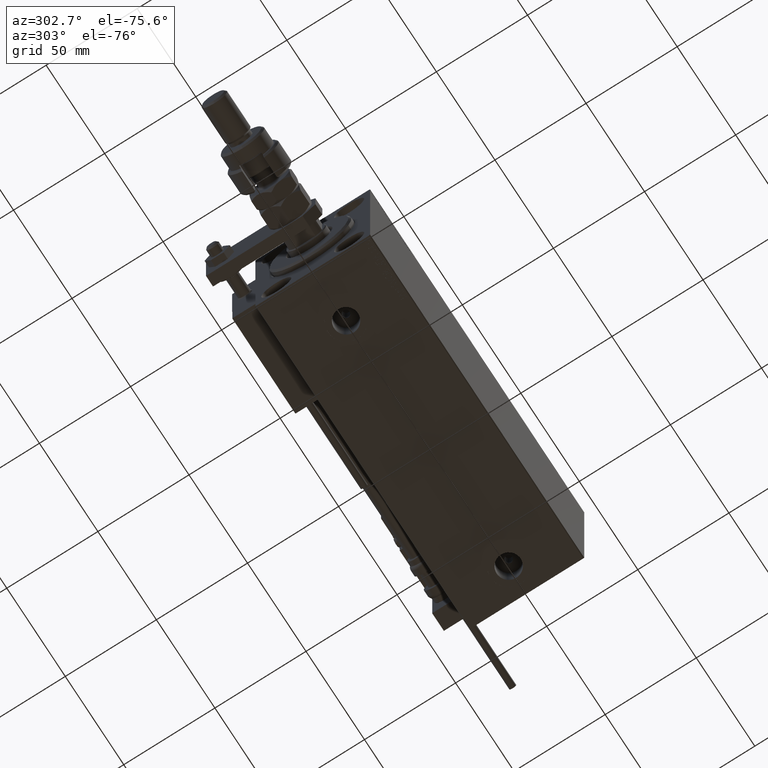
[diagram: clean part render]
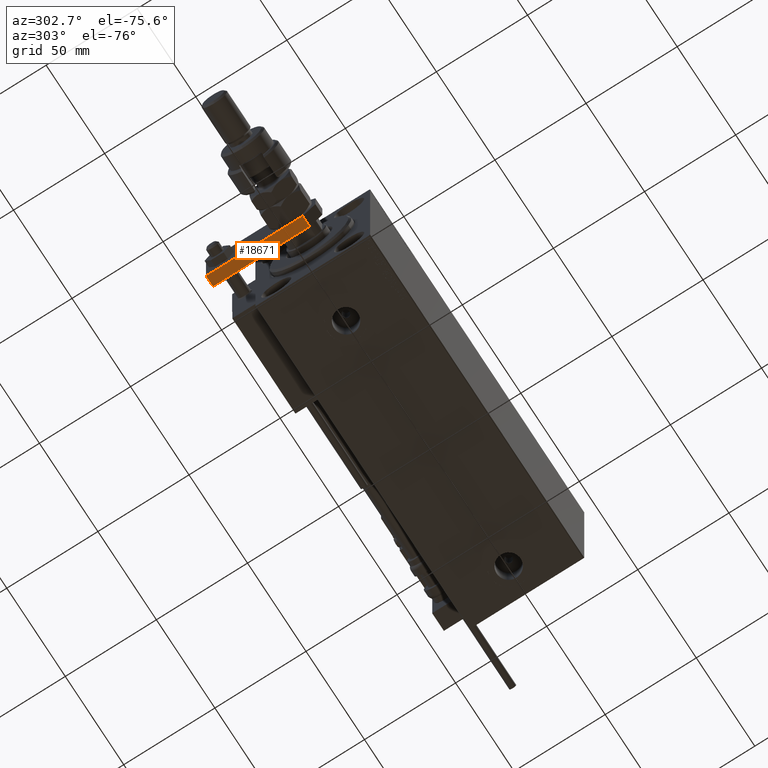
[diagram: same view with one face highlighted and labeled with its STEP entity id]
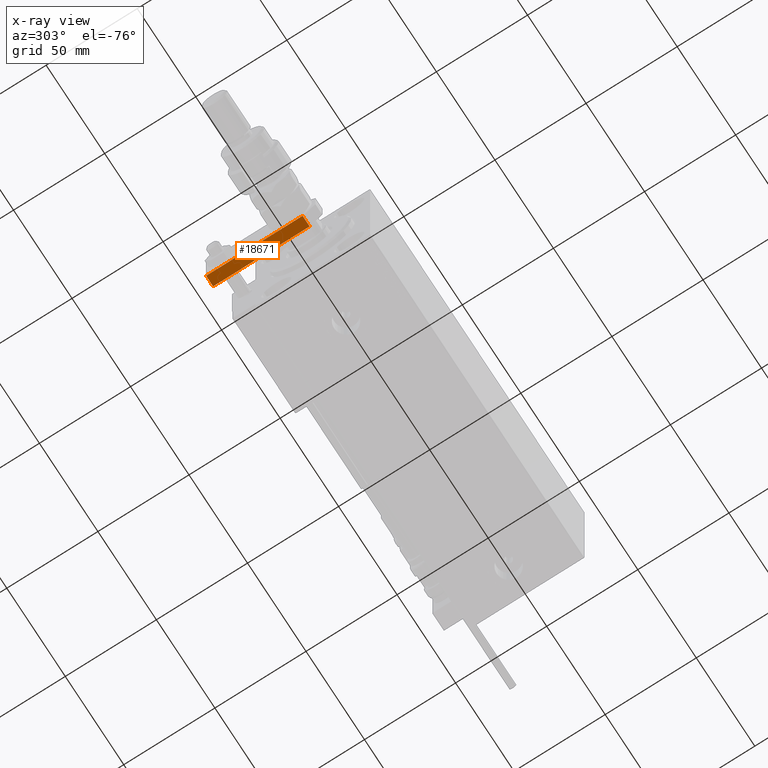
[diagram: x-ray of the same camera — body ghosted, the highlighted face saturated]
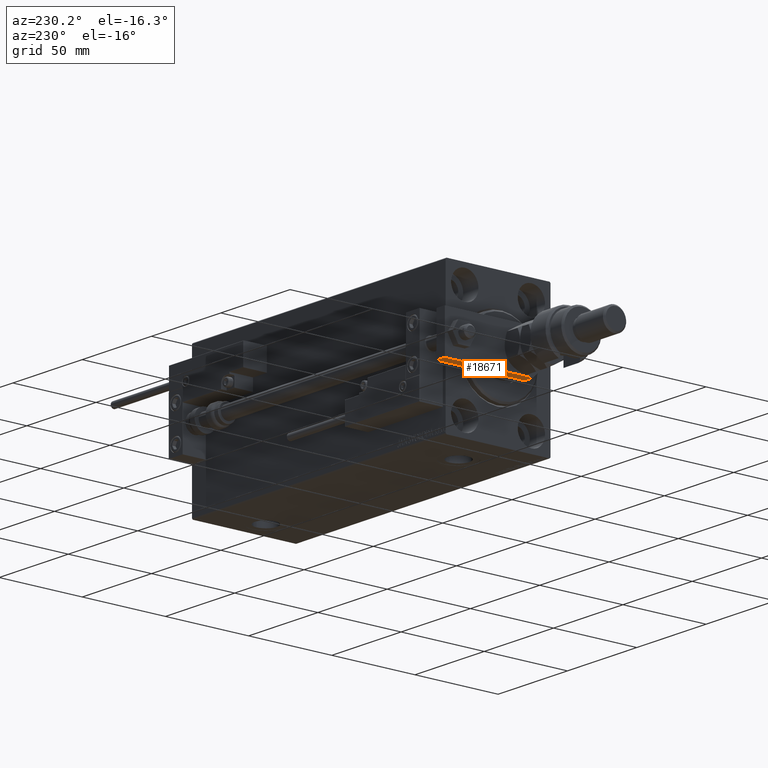
[diagram: same view with one face highlighted and labeled with its STEP entity id]
A machine part, auxiliary view. The second image highlights one B-rep face of the part: STEP entity #18671.
The next image is the same camera in x-ray: the body ghosted, the highlighted face saturated — about 0% of this face is hidden behind the body in this view.
A second angle (auxiliary view) of the same face is appended — the face is thin or edge-on in the first view.
In plain terms, the highlighted planar face has unit normal (0, -0, 1).
Its self-contained STEP definition (entity closure, byte-faithful):
#145 = EDGE_CURVE ( 'NONE', #26861, #39306, #30435, .T. ) ;
#3591 = ORIENTED_EDGE ( 'NONE', *, *, #145, .F. ) ;
#3696 = CARTESIAN_POINT ( 'NONE',  ( -12.49999999999999822, 60.00000000000000000, 6.000000000000000000 ) ) ;
#4661 = DIRECTION ( 'NONE',  ( -8.673617379884035472E-17, -1.000000000000000000, 0.000000000000000000 ) ) ;
#4721 = CARTESIAN_POINT ( 'NONE',  ( -12.50000000000000355, 7.000000000000013323, 6.000000000000000000 ) ) ;
#5438 = DIRECTION ( 'NONE',  ( 8.673617379884034239E-17, 1.000000000000000000, 0.000000000000000000 ) ) ;
#6530 = FACE_OUTER_BOUND ( 'NONE', #36120, .T. ) ;
#7567 = CARTESIAN_POINT ( 'NONE',  ( -12.49999999999999822, 60.00000000000000000, 6.000000000000000000 ) ) ;
#8026 = VECTOR ( 'NONE', #26311, 1000.000000000000000 ) ;
#9568 = CARTESIAN_POINT ( 'NONE',  ( -12.49999999999999822, 60.00000000000000000, 6.000000000000000000 ) ) ;
#10255 = VECTOR ( 'NONE', #40395, 1000.000000000000000 ) ;
#11726 = VERTEX_POINT ( 'NONE', #25297 ) ;
#12129 = ORIENTED_EDGE ( 'NONE', *, *, #14266, .T. ) ;
#12751 = ORIENTED_EDGE ( 'NONE', *, *, #40720, .T. ) ;
#12910 = CARTESIAN_POINT ( 'NONE',  ( -12.49999999999999822, 60.00000000000000000, 0.000000000000000000 ) ) ;
#14266 = EDGE_CURVE ( 'NONE', #11726, #41342, #17570, .T. ) ;
#17570 = LINE ( 'NONE', #12910, #38928 ) ;
#18671 = ADVANCED_FACE ( 'NONE', ( #6530 ), #47223, .F. ) ;
#20181 = DIRECTION ( 'NONE',  ( -0.000000000000000000, -0.000000000000000000, -1.000000000000000000 ) ) ;
#25297 = CARTESIAN_POINT ( 'NONE',  ( -12.49999999999999822, 60.00000000000000000, 0.000000000000000000 ) ) ;
#26311 = DIRECTION ( 'NONE',  ( -8.673617379884035472E-17, -1.000000000000000000, 0.000000000000000000 ) ) ;
#26357 = DIRECTION ( 'NONE',  ( 1.000000000000000000, -8.673617379884034239E-17, 0.000000000000000000 ) ) ;
#26861 = VERTEX_POINT ( 'NONE', #7567 ) ;
#28555 = AXIS2_PLACEMENT_3D ( 'NONE', #9568, #26357, #5438 ) ;
#30435 = LINE ( 'NONE', #41974, #8026 ) ;
#31081 = CARTESIAN_POINT ( 'NONE',  ( -12.50000000000000355, 7.000000000000013323, 0.000000000000000000 ) ) ;
#36120 = EDGE_LOOP ( 'NONE', ( #12129, #37736, #3591, #12751 ) ) ;
#37736 = ORIENTED_EDGE ( 'NONE', *, *, #41405, .T. ) ;
#38928 = VECTOR ( 'NONE', #4661, 1000.000000000000000 ) ;
#39306 = VERTEX_POINT ( 'NONE', #4721 ) ;
#40395 = DIRECTION ( 'NONE',  ( 0.000000000000000000, 0.000000000000000000, 1.000000000000000000 ) ) ;
#40720 = EDGE_CURVE ( 'NONE', #26861, #11726, #40796, .T. ) ;
#40796 = LINE ( 'NONE', #3696, #49759 ) ;
#40945 = LINE ( 'NONE', #49764, #10255 ) ;
#41342 = VERTEX_POINT ( 'NONE', #31081 ) ;
#41405 = EDGE_CURVE ( 'NONE', #41342, #39306, #40945, .T. ) ;
#41974 = CARTESIAN_POINT ( 'NONE',  ( -12.49999999999999822, 60.00000000000000000, 6.000000000000000000 ) ) ;
#47223 = PLANE ( 'NONE',  #28555 ) ;
#49759 = VECTOR ( 'NONE', #20181, 1000.000000000000000 ) ;
#49764 = CARTESIAN_POINT ( 'NONE',  ( -12.50000000000000355, 7.000000000000013323, 6.000000000000000000 ) ) ;